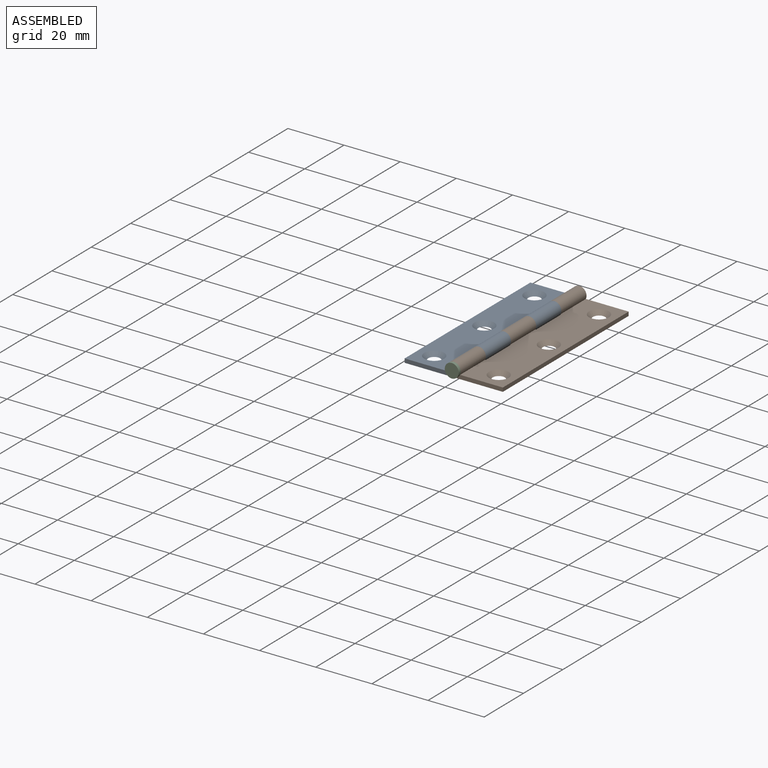
[diagram: assembled view]
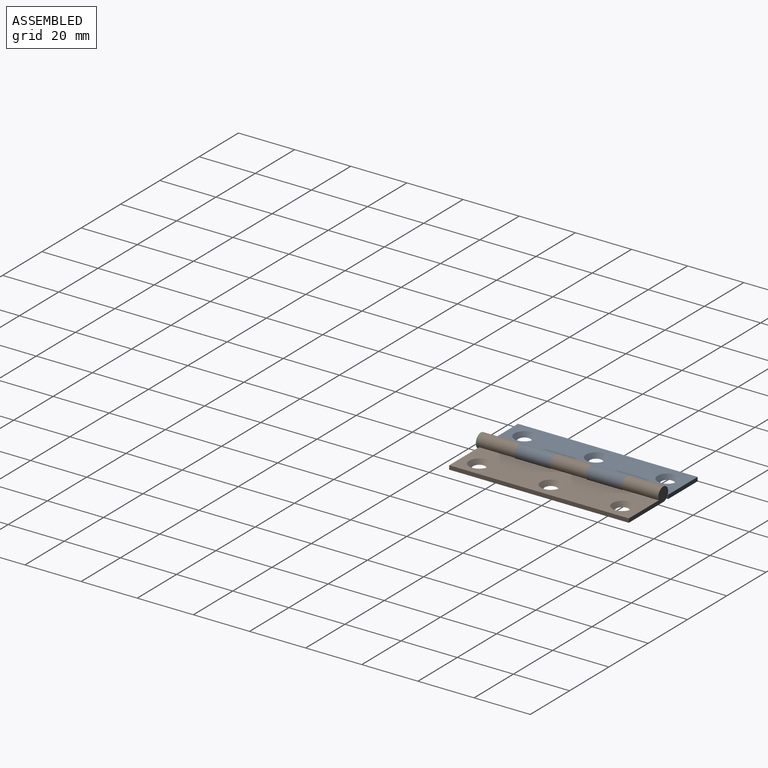
[diagram: assembled view, second angle]
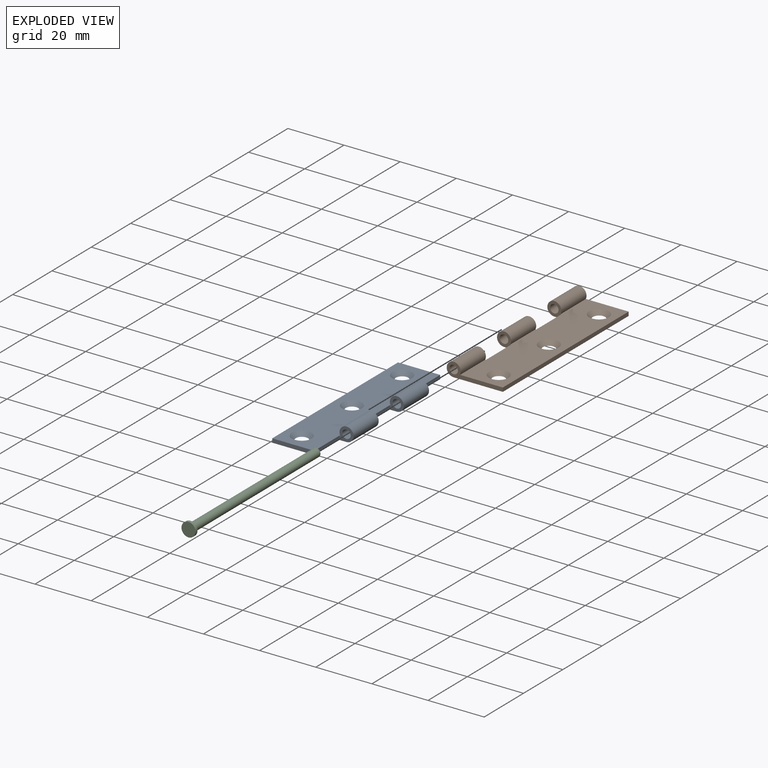
[diagram: exploded view]
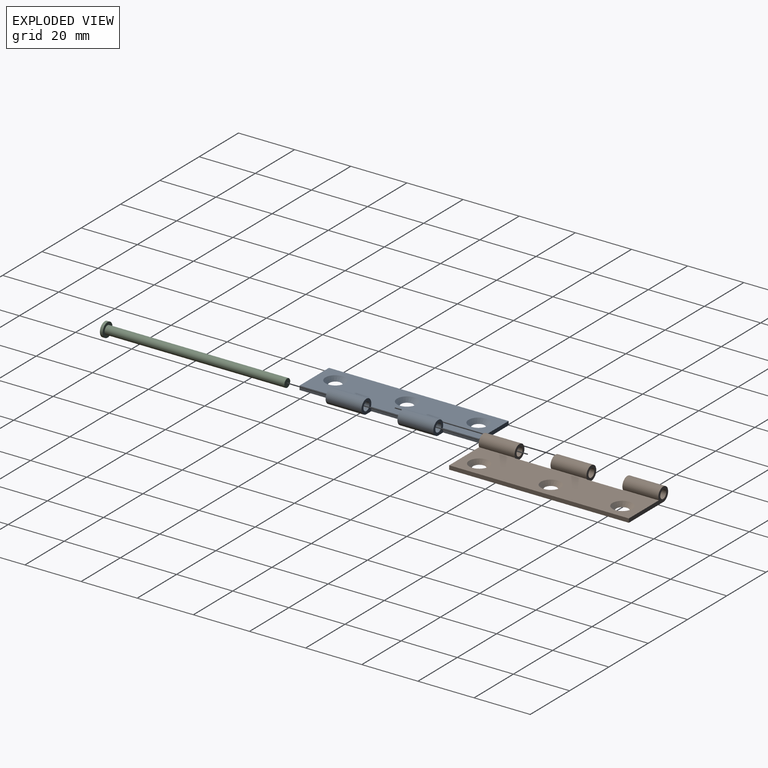
[diagram: exploded view, second angle]
ASSEMBLY  parts=3 mates=2
PART A: 19 faces, bbox 20x64x5 mm
  f0: cylinder r=2.5mm len=12.8mm, axis (0,1,0), area 165.4mm2, adj f2,f3,f12,f15
  f1: cylinder r=2.5mm len=12.8mm, axis (0,1,0), area 165.4mm2, adj f2,f3,f10,f13
  f2: plane 64x15.26mm, normal (0,0,-1), area 847.8mm2, adj f0,f1,f4,f5,f6,f7,f8,f9
  f3: plane 64x17.5mm, normal (0,0,1), area 980.4mm2, adj f0,f1,f4,f5,f6,f7,f8,f9
  f4: plane 64x1.4mm, normal (1,0,0), area 89.6mm2, adj f2,f3,f5,f6
  f5: plane 15x1.4mm, normal (0,-1,0), area 21mm2, adj f2,f3,f4,f16
  f6: plane 15x1.4mm, normal (0,1,0), area 21mm2, adj f2,f3,f4,f11
  f7: cone r=2.15mm half-angle=45deg, axis (0,0,-1), area 35.5mm2, adj f2,f3
  f8: cone r=2.15mm half-angle=45deg, axis (0,0,-1), area 35.5mm2, adj f2,f3
  f9: cone r=2.15mm half-angle=45deg, axis (0,0,-1), area 35.5mm2, adj f2,f3
  f10: plane 5x5mm, normal (0,1,0), area 13.8mm2, adj f1,f2,f3,f11,f17
  f11: plane 12.8x1.4mm, normal (-1,0,0), area 17.9mm2, adj f2,f3,f6,f10
  f12: plane 5x5mm, normal (0,1,0), area 13.8mm2, adj f0,f2,f3,f14,f18
  f13: plane 5x5mm, normal (0,-1,0), area 13.8mm2, adj f1,f2,f3,f14,f17
  f14: plane 12.8x1.4mm, normal (-1,0,0), area 17.9mm2, adj f2,f3,f12,f13
  f15: plane 5x5mm, normal (0,-1,0), area 13.8mm2, adj f0,f2,f3,f16,f18
  f16: plane 12.8x1.4mm, normal (-1,0,0), area 17.9mm2, adj f2,f3,f5,f15
  f17: cylinder r=1.5mm len=12.8mm, axis (0,1,0), area 120.6mm2, adj f10,f13
  f18: cylinder r=1.5mm len=12.8mm, axis (0,1,0), area 120.6mm2, adj f12,f15
PART B: 20 faces, bbox 20x64x5 mm
  f0: cylinder r=2.5mm len=12.8mm, axis (0,1,0), area 165.4mm2, adj f3,f5,f8,f17
  f1: cylinder r=2.5mm len=12.8mm, axis (0,1,0), area 165.4mm2, adj f3,f5,f13,f16
  f2: cylinder r=2.5mm len=12.8mm, axis (0,1,0), area 165.4mm2, adj f3,f5,f9,f14
  f3: plane 64x15.26mm, normal (0,0,-1), area 851mm2, adj f0,f1,f2,f6,f8,f9,f10,f11
  f4: cylinder r=1.5mm len=12.8mm, axis (0,1,0), area 120.6mm2, adj f8,f17
  f5: plane 64x17.5mm, normal (0,0,1), area 1012.4mm2, adj f0,f1,f2,f6,f8,f9,f10,f11
  f6: plane 64x1.4mm, normal (1,0,0), area 89.6mm2, adj f3,f5,f8,f9
  f7: cylinder r=1.5mm len=12.8mm, axis (0,1,0), area 120.6mm2, adj f9,f14
  f8: plane 20x5mm, normal (0,-1,0), area 34.8mm2, adj f0,f3,f4,f5,f6
  f9: plane 20x5mm, normal (0,1,0), area 34.8mm2, adj f2,f3,f5,f6,f7
  f10: cone r=2.15mm half-angle=45deg, axis (0,0,-1), area 35.5mm2, adj f3,f5
  f11: cone r=2.15mm half-angle=45deg, axis (0,0,-1), area 35.5mm2, adj f3,f5
  f12: cone r=2.15mm half-angle=45deg, axis (0,0,-1), area 35.5mm2, adj f3,f5
  f13: plane 5x5mm, normal (0,1,0), area 13.8mm2, adj f1,f3,f5,f15,f19
  f14: plane 5x5mm, normal (0,-1,0), area 13.8mm2, adj f2,f3,f5,f7,f15
  f15: plane 12.8x1.4mm, normal (-1,0,0), area 17.9mm2, adj f3,f5,f13,f14
  f16: plane 5x5mm, normal (0,-1,0), area 13.8mm2, adj f1,f3,f5,f18,f19
  f17: plane 5x5mm, normal (0,1,0), area 13.8mm2, adj f0,f3,f4,f5,f18
  f18: plane 12.8x1.4mm, normal (-1,0,0), area 17.9mm2, adj f3,f5,f16,f17
  f19: cylinder r=1.5mm len=12.8mm, axis (0,1,0), area 120.6mm2, adj f13,f16
PART C: 5 faces, bbox 5x65x5 mm
  f0: cylinder r=2.5mm len=5mm, axis (0,1,0), area 15.7mm2, adj f1,f2
  f1: plane 5x5mm, normal (0,-1,0), area 12.6mm2, adj f0,f3
  f2: plane 5x5mm, normal (0,1,0), area 19.6mm2, adj f0
  f3: cylinder r=1.5mm len=64mm, axis (0,1,0), area 603.2mm2, adj f1,f4
  f4: plane 3x3mm, normal (0,-1,0), area 7.1mm2, adj f3
PLACE A rot(axis=(0,-1,0),180deg) t=(-0.42,49.06,3.48)mm
PLACE B rot(axis=(-1,0,0),180deg) t=(-0.42,-14.94,3.48)mm fixed
PLACE C rot(axis=(-0.71,0,0.71),180deg) t=(-0.42,-15.94,3.48)mm
MATE slider C.f0 <-> B.f0  axis (0,-1,0) through (-0.42,-14.94,3.48)mm
MATE revolute A.f0 <-> B.f0  axis (0,1,0) through (-0.42,-2.14,3.48)mm
